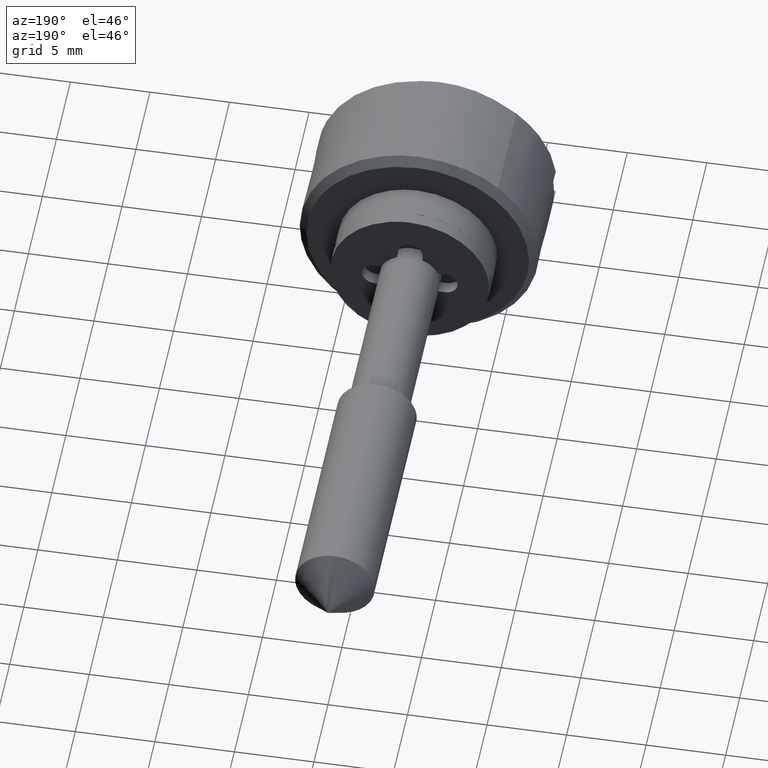
[diagram: clean part render]
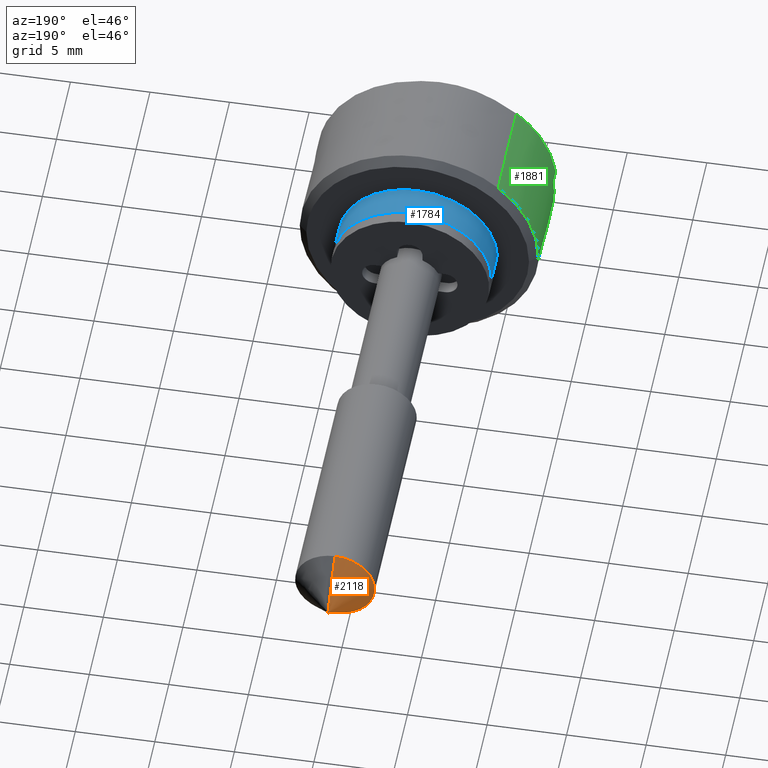
[diagram: same view with three faces highlighted in distinct colors, each labeled with its STEP entity id]
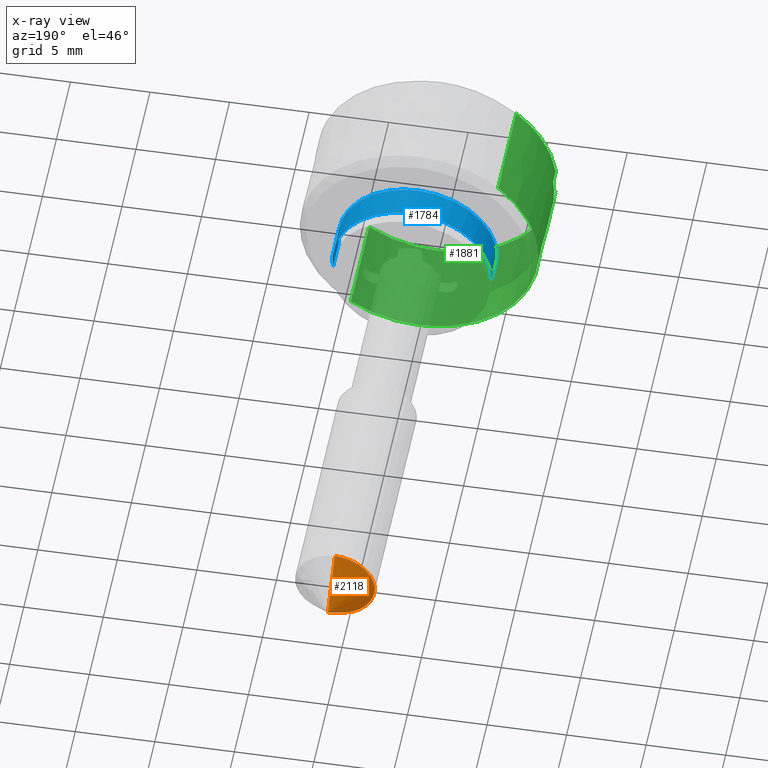
[diagram: x-ray of the same camera — body ghosted, the three highlighted faces saturated]
A machine part, auxiliary view with three faces highlighted in distinct colors.
The next image is the same camera in x-ray (body ghosted, the three faces saturated) — at least one of them is partly hidden behind the body in this view.
Their STEP definitions:

[orange] entity #2118 — the highlighted face is a freeform B-spline surface patch.
#1037=CARTESIAN_POINT('',(27.500000000000000,2.482523815905718,0.295085586670905));
#1038=VERTEX_POINT('',#1037);
#1039=CARTESIAN_POINT('',(27.499999999999979,0.0,-2.499999999999983));
#1040=VERTEX_POINT('',#1039);
#1041=CARTESIAN_POINT('',(27.499999999999993,2.482523815905718,0.295085586670905));
#1042=CARTESIAN_POINT('',(27.499999999999996,2.500000000000000,0.148060299159091));
#1043=CARTESIAN_POINT('',(27.500000000000000,2.500000000000000,0.0));
#1044=CARTESIAN_POINT('',(27.500000000000004,2.500000000000000,-2.500000000000000));
#1045=CARTESIAN_POINT('',(27.500000000000000,0.0,-2.500000000000000));
#1053=(BOUNDED_CURVE()B_SPLINE_CURVE(2,(#1041,#1042,#1043,#1044,#1045),.UNSPECIFIED.,.F.,.U.)B_SPLINE_CURVE_WITH_KNOTS((3,2,3),(0.459124947023389,0.500000000000000,1.0),.UNSPECIFIED.)CURVE()GEOMETRIC_REPRESENTATION_ITEM()RATIONAL_B_SPLINE_CURVE((0.956026754180144,0.976055948329020,1.0,0.707106781186548,1.0))REPRESENTATION_ITEM(''));
#1054=EDGE_CURVE('',#1038,#1040,#1053,.T.);
#1136=CARTESIAN_POINT('',(27.499999999999979,0.0,2.499999999999983));
#1137=VERTEX_POINT('',#1136);
#1138=CARTESIAN_POINT('',(27.500000000000000,0.0,2.500000000000000));
#1139=CARTESIAN_POINT('',(27.499999999999993,2.220436314826163,2.500000000000001));
#1140=CARTESIAN_POINT('',(27.500000000000000,2.482523815905718,0.295085586670905));
#1148=(BOUNDED_CURVE()B_SPLINE_CURVE(2,(#1138,#1139,#1140),.UNSPECIFIED.,.F.,.U.)B_SPLINE_CURVE_WITH_KNOTS((3,3),(0.0,0.459124947023389),.UNSPECIFIED.)CURVE()GEOMETRIC_REPRESENTATION_ITEM()RATIONAL_B_SPLINE_CURVE((1.0,0.731050832857527,0.956026754180144))REPRESENTATION_ITEM(''));
#1149=EDGE_CURVE('',#1137,#1038,#1148,.T.);
#1989=CARTESIAN_POINT('',(30.0,0.0,0.0));
#1990=VERTEX_POINT('',#1989);
#1991=CARTESIAN_POINT('',(30.0,0.0,0.0));
#1992=CARTESIAN_POINT('',(27.499999999999979,0.0,2.499999999999983));
#1993=QUASI_UNIFORM_CURVE('',1,(#1991,#1992),.UNSPECIFIED.,.F.,.U.);
#1994=EDGE_CURVE('',#1990,#1137,#1993,.T.);
#1998=CARTESIAN_POINT('',(30.0,0.0,0.0));
#1999=CARTESIAN_POINT('',(27.499999999999979,0.0,-2.499999999999983));
#2000=QUASI_UNIFORM_CURVE('',1,(#1998,#1999),.UNSPECIFIED.,.F.,.U.);
#2001=EDGE_CURVE('',#1990,#1040,#2000,.T.);
#2094=CARTESIAN_POINT('',(30.0,0.0,0.0));
#2095=CARTESIAN_POINT('',(27.435937499999980,-0.067119331520657,-2.563183859820054));
#2096=CARTESIAN_POINT('',(30.0,0.0,0.0));
#2097=CARTESIAN_POINT('',(27.435937499999980,2.633912877398660,-2.633912877398667));
#2098=CARTESIAN_POINT('',(30.0,0.0,0.0));
#2099=CARTESIAN_POINT('',(27.435937499999980,2.563183859820054,0.067119331520650));
#2100=CARTESIAN_POINT('',(30.0,0.0,0.0));
#2101=CARTESIAN_POINT('',(27.435937499999980,2.492454842241449,2.768151540439967));
#2102=CARTESIAN_POINT('',(30.0,0.0,0.0));
#2103=CARTESIAN_POINT('',(27.435937499999980,-0.201174025139667,2.556158351025013));
#2111=(BOUNDED_SURFACE()B_SPLINE_SURFACE(1,2,((#2094,#2096,#2098,#2100,#2102),(#2095,#2097,#2099,#2101,#2103)),.UNSPECIFIED.,.F.,.F.,.U.)B_SPLINE_SURFACE_WITH_KNOTS((2,2),(3,2,3),(0.0,1.0),(0.0,1.0,2.0),.UNSPECIFIED.)GEOMETRIC_REPRESENTATION_ITEM()RATIONAL_B_SPLINE_SURFACE(((1.0,0.688354575693754,1.0,0.688354575693754,1.0),(1.0,0.688354575693754,1.0,0.688354575693754,1.0)))REPRESENTATION_ITEM('')SURFACE());
#2112=ORIENTED_EDGE('',*,*,#2001,.T.);
#2113=ORIENTED_EDGE('',*,*,#1054,.F.);
#2114=ORIENTED_EDGE('',*,*,#1149,.F.);
#2115=ORIENTED_EDGE('',*,*,#1994,.F.);
#2116=EDGE_LOOP('',(#2112,#2113,#2114,#2115));
#2117=FACE_OUTER_BOUND('',#2116,.T.);
#2118=ADVANCED_FACE('',(#2117),#2111,.T.);

[blue] entity #1784 — the highlighted face is a freeform B-spline surface patch.
#1619=CARTESIAN_POINT('',(-1.999999999999962,-4.961332158347872,-0.620631303163347));
#1620=VERTEX_POINT('',#1619);
#1634=CARTESIAN_POINT('',(-2.000000000000151,4.999809663066866,0.043627205654747));
#1635=VERTEX_POINT('',#1634);
#1651=CARTESIAN_POINT('',(-1.040834E-017,4.999809669759694,0.043626438526642));
#1652=VERTEX_POINT('',#1651);
#1653=CARTESIAN_POINT('',(-2.000000000000151,4.999809663066866,0.043627205654747));
#1654=CARTESIAN_POINT('',(-1.040834E-017,4.999809669759694,0.043626438526642));
#1655=QUASI_UNIFORM_CURVE('',1,(#1653,#1654),.UNSPECIFIED.,.F.,.U.);
#1656=EDGE_CURVE('',#1635,#1652,#1655,.T.);
#1675=CARTESIAN_POINT('',(1.015215E-016,-4.961331216861208,-0.620638829430668));
#1676=VERTEX_POINT('',#1675);
#1690=CARTESIAN_POINT('',(-1.999999999999962,-4.961332158347872,-0.620631303163347));
#1691=CARTESIAN_POINT('',(1.015215E-016,-4.961331216861208,-0.620638829430668));
#1692=QUASI_UNIFORM_CURVE('',1,(#1690,#1691),.UNSPECIFIED.,.F.,.U.);
#1693=EDGE_CURVE('',#1620,#1676,#1692,.T.);
#1698=CARTESIAN_POINT('',(-2.050000000000000,4.999809615320855,0.043632677491869));
#1699=CARTESIAN_POINT('',(-2.050000000000001,4.956176937828985,5.043442292812725));
#1700=CARTESIAN_POINT('',(-2.050000000000000,-0.043632677491869,4.999809615320855));
#1701=CARTESIAN_POINT('',(-2.050000000000001,-5.043442292812725,4.956176937828985));
#1702=CARTESIAN_POINT('',(-2.050000000000000,-4.999809615320855,-0.043632677491869));
#1703=CARTESIAN_POINT('',(-2.050000000000000,-4.997282156301378,-0.333250794790868));
#1704=CARTESIAN_POINT('',(-2.050000000000000,-4.961331069127693,-0.620640010399146));
#1705=CARTESIAN_POINT('',(0.051250000000000,4.999809615320855,0.043632677491869));
#1706=CARTESIAN_POINT('',(0.051250000000000,4.956176937828985,5.043442292812725));
#1707=CARTESIAN_POINT('',(0.051250000000000,-0.043632677491869,4.999809615320855));
#1708=CARTESIAN_POINT('',(0.051250000000000,-5.043442292812725,4.956176937828985));
#1709=CARTESIAN_POINT('',(0.051250000000000,-4.999809615320855,-0.043632677491869));
#1710=CARTESIAN_POINT('',(0.051250000000000,-4.997282156301378,-0.333250794790868));
#1711=CARTESIAN_POINT('',(0.051250000000000,-4.961331069127693,-0.620640010399146));
#1719=(BOUNDED_SURFACE()B_SPLINE_SURFACE(2,1,((#1698,#1705),(#1699,#1706),(#1700,#1707),(#1701,#1708),(#1702,#1709),(#1703,#1710),(#1704,#1711)),.UNSPECIFIED.,.F.,.F.,.U.)B_SPLINE_SURFACE_WITH_KNOTS((3,2,2,3),(2,2),(0.0,8.284271247461899,16.568542494923800,17.231284194720750),(0.0,2.101250000000000),.UNSPECIFIED.)GEOMETRIC_REPRESENTATION_ITEM()RATIONAL_B_SPLINE_SURFACE(((1.0,1.0),(0.707106781186548,0.707106781186548),(1.0,1.0),(0.707106781186548,0.707106781186548),(1.0,1.0),(0.976568542494924,0.976568542494924),(0.956886118190660,0.956886118190660)))REPRESENTATION_ITEM('')SURFACE());
#1720=CARTESIAN_POINT('',(-2.0,0.0,5.0));
#1721=VERTEX_POINT('',#1720);
#1722=CARTESIAN_POINT('',(-1.999999999999962,-4.961332158347873,-0.620631303163347));
#1723=CARTESIAN_POINT('',(-2.000000000000000,-5.0,-0.311520233086355));
#1724=CARTESIAN_POINT('',(-2.0,-5.0,0.0));
#1725=CARTESIAN_POINT('',(-2.000000000000000,-5.000000000000001,5.000000000000001));
#1726=CARTESIAN_POINT('',(-2.0,0.0,5.0));
#1734=(BOUNDED_CURVE()B_SPLINE_CURVE(2,(#1722,#1723,#1724,#1725,#1726),.UNSPECIFIED.,.F.,.U.)B_SPLINE_CURVE_WITH_KNOTS((3,2,3),(0.228526367006317,0.250000000000000,0.500000000000000),.UNSPECIFIED.)CURVE()GEOMETRIC_REPRESENTATION_ITEM()RATIONAL_B_SPLINE_CURVE((0.954006004652503,0.974842074051445,1.0,0.707106781186548,1.0))REPRESENTATION_ITEM(''));
#1735=EDGE_CURVE('',#1620,#1721,#1734,.T.);
#1736=ORIENTED_EDGE('',*,*,#1735,.F.);
#1737=ORIENTED_EDGE('',*,*,#1693,.T.);
#1738=CARTESIAN_POINT('',(0.0,0.0,5.0));
#1739=VERTEX_POINT('',#1738);
#1740=CARTESIAN_POINT('',(0.0,0.0,5.0));
#1741=CARTESIAN_POINT('',(0.0,-5.000000000000001,5.000000000000001));
#1742=CARTESIAN_POINT('',(0.0,-5.0,0.0));
#1743=CARTESIAN_POINT('',(0.0,-5.0,-0.311524040270914));
#1744=CARTESIAN_POINT('',(1.015215E-016,-4.961331216861208,-0.620638829430668));
#1752=(BOUNDED_CURVE()B_SPLINE_CURVE(2,(#1740,#1741,#1742,#1743,#1744),.UNSPECIFIED.,.F.,.U.)B_SPLINE_CURVE_WITH_KNOTS((3,2,3),(0.0,0.250000000000000,0.271473888827134),.UNSPECIFIED.)CURVE()GEOMETRIC_REPRESENTATION_ITEM()RATIONAL_B_SPLINE_CURVE((1.0,0.707106781186548,1.0,0.974841774323914,0.954005508177877))REPRESENTATION_ITEM(''));
#1753=EDGE_CURVE('',#1739,#1676,#1752,.T.);
#1754=ORIENTED_EDGE('',*,*,#1753,.F.);
#1755=CARTESIAN_POINT('',(-1.040834E-017,4.999809669759694,0.043626438526642));
#1756=CARTESIAN_POINT('',(0.0,4.956562238205842,5.000000000000001));
#1757=CARTESIAN_POINT('',(0.0,0.0,5.0));
#1765=(BOUNDED_CURVE()B_SPLINE_CURVE(2,(#1755,#1756,#1757),.UNSPECIFIED.,.F.,.U.)B_SPLINE_CURVE_WITH_KNOTS((3,3),(0.751539674536829,1.0),.UNSPECIFIED.)CURVE()GEOMETRIC_REPRESENTATION_ITEM()RATIONAL_B_SPLINE_CURVE((0.996414536775377,0.708910622110616,1.0))REPRESENTATION_ITEM(''));
#1766=EDGE_CURVE('',#1652,#1739,#1765,.T.);
#1767=ORIENTED_EDGE('',*,*,#1766,.F.);
#1768=ORIENTED_EDGE('',*,*,#1656,.F.);
#1769=CARTESIAN_POINT('',(-2.0,0.0,5.0));
#1770=CARTESIAN_POINT('',(-1.999999999999999,4.956561477684366,4.999999999999999));
#1771=CARTESIAN_POINT('',(-2.000000000000151,4.999809663066866,0.043627205654747));
#1779=(BOUNDED_CURVE()B_SPLINE_CURVE(2,(#1769,#1770,#1771),.UNSPECIFIED.,.F.,.U.)B_SPLINE_CURVE_WITH_KNOTS((3,3),(0.500000000000000,0.748460298437314),.UNSPECIFIED.)CURVE()GEOMETRIC_REPRESENTATION_ITEM()RATIONAL_B_SPLINE_CURVE((1.0,0.708910653773377,0.996414474229868))REPRESENTATION_ITEM(''));
#1780=EDGE_CURVE('',#1721,#1635,#1779,.T.);
#1781=ORIENTED_EDGE('',*,*,#1780,.F.);
#1782=EDGE_LOOP('',(#1736,#1737,#1754,#1767,#1768,#1781));
#1783=FACE_OUTER_BOUND('',#1782,.T.);
#1784=ADVANCED_FACE('',(#1783),#1719,.T.);

[green] entity #1881 — the highlighted face is a freeform B-spline surface patch.
#1457=CARTESIAN_POINT('',(-2.500000000000329,7.499714422981644,-0.065449016240611));
#1458=VERTEX_POINT('',#1457);
#1464=CARTESIAN_POINT('',(-2.499999999999945,4.969649450100505,5.617168712359836));
#1465=VERTEX_POINT('',#1464);
#1466=CARTESIAN_POINT('',(-2.499999999999946,4.969649450100505,5.617168712359836));
#1467=CARTESIAN_POINT('',(-2.499999999999945,7.500000000000000,3.378504384688980));
#1468=CARTESIAN_POINT('',(-2.499999999999945,7.500000000000000,0.0));
#1469=CARTESIAN_POINT('',(-2.499999999999945,7.500000000000000,-0.032725131158087));
#1470=CARTESIAN_POINT('',(-2.500000000000328,7.499714422981644,-0.065449016240611));
#1478=(BOUNDED_CURVE()B_SPLINE_CURVE(2,(#1466,#1467,#1468,#1469,#1470),.UNSPECIFIED.,.F.,.U.)B_SPLINE_CURVE_WITH_KNOTS((3,2,3),(0.615779863551538,0.750000000000000,0.751539894335120),.UNSPECIFIED.)CURVE()GEOMETRIC_REPRESENTATION_ITEM()RATIONAL_B_SPLINE_CURVE((0.854350162460765,0.842751328824116,1.0,0.998195901566217,0.996414028100099))REPRESENTATION_ITEM(''));
#1479=EDGE_CURVE('',#1465,#1458,#1478,.T.);
#1515=CARTESIAN_POINT('',(-2.499999999999945,-4.287826768769291,-6.153417067046060));
#1516=VERTEX_POINT('',#1515);
#1532=CARTESIAN_POINT('',(-2.499999999999945,0.0,-7.500000000000000));
#1533=VERTEX_POINT('',#1532);
#1534=CARTESIAN_POINT('',(-2.499999999999945,0.0,-7.500000000000000));
#1535=CARTESIAN_POINT('',(-2.499999999999945,-2.355359146201568,-7.500000000000000));
#1536=CARTESIAN_POINT('',(-2.499999999999945,-4.287826768769291,-6.153417067046059));
#1544=(BOUNDED_CURVE()B_SPLINE_CURVE(2,(#1534,#1535,#1536),.UNSPECIFIED.,.F.,.U.)B_SPLINE_CURVE_WITH_KNOTS((3,3),(0.0,0.098251814606992),.UNSPECIFIED.)CURVE()GEOMETRIC_REPRESENTATION_ITEM()RATIONAL_B_SPLINE_CURVE((1.0,0.884890839061983,0.860259149644353))REPRESENTATION_ITEM(''));
#1545=EDGE_CURVE('',#1533,#1516,#1544,.T.);
#1547=CARTESIAN_POINT('',(-2.500000000000329,7.499714422981644,-0.065449016240611));
#1548=CARTESIAN_POINT('',(-2.499999999999945,7.434834079456778,-7.500000000000000));
#1549=CARTESIAN_POINT('',(-2.499999999999945,0.0,-7.500000000000000));
#1557=(BOUNDED_CURVE()B_SPLINE_CURVE(2,(#1547,#1548,#1549),.UNSPECIFIED.,.F.,.U.)B_SPLINE_CURVE_WITH_KNOTS((3,3),(0.751539894335119,1.0),.UNSPECIFIED.)CURVE()GEOMETRIC_REPRESENTATION_ITEM()RATIONAL_B_SPLINE_CURVE((0.996414028100101,0.708910879620330,1.0))REPRESENTATION_ITEM(''));
#1558=EDGE_CURVE('',#1458,#1533,#1557,.T.);
#1785=CARTESIAN_POINT('',(-9.162397500000004,-4.287829581630136,-6.153415106987136));
#1786=CARTESIAN_POINT('',(-9.162397500000006,1.191735502885045,-9.971691763989039));
#1787=CARTESIAN_POINT('',(-9.162397500000004,5.617167905917516,-4.969650361618027));
#1788=CARTESIAN_POINT('',(-9.162397500000004,10.586818267535543,0.647517544299490));
#1789=CARTESIAN_POINT('',(-9.162397500000004,4.969650361618027,5.617167905917516));
#1790=CARTESIAN_POINT('',(-2.333440062499944,-4.287829581630136,-6.153415106987136));
#1791=CARTESIAN_POINT('',(-2.333440062499943,1.191735502885045,-9.971691763989039));
#1792=CARTESIAN_POINT('',(-2.333440062499943,5.617167905917516,-4.969650361618027));
#1793=CARTESIAN_POINT('',(-2.333440062499943,10.586818267535543,0.647517544299490));
#1794=CARTESIAN_POINT('',(-2.333440062499943,4.969650361618027,5.617167905917516));
#1802=(BOUNDED_SURFACE()B_SPLINE_SURFACE(2,1,((#1785,#1790),(#1786,#1791),(#1787,#1792),(#1788,#1793),(#1789,#1794)),.UNSPECIFIED.,.F.,.F.,.U.)B_SPLINE_SURFACE_WITH_KNOTS((3,2,3),(2,2),(0.0,11.432294321497420,23.858701192690258),(0.0,6.828957437500062),.UNSPECIFIED.)GEOMETRIC_REPRESENTATION_ITEM()RATIONAL_B_SPLINE_SURFACE(((0.956886118190660,0.956886118190660),(0.730538238691624,0.730538238691624),(1.0,1.0),(0.707106781186548,0.707106781186548),(1.0,1.0)))REPRESENTATION_ITEM('')SURFACE());
#1803=CARTESIAN_POINT('',(-8.999899999999975,-4.287828965341124,-6.153415536430242));
#1804=VERTEX_POINT('',#1803);
#1805=CARTESIAN_POINT('',(-8.999900000000000,7.445804187594510,-0.900000000000000));
#1806=VERTEX_POINT('',#1805);
#1807=CARTESIAN_POINT('',(-8.999899999999975,-4.287828965341124,-6.153415536430242));
#1808=CARTESIAN_POINT('',(-8.999899999999999,-2.355360204235436,-7.499999999999999));
#1809=CARTESIAN_POINT('',(-8.999900000000000,0.0,-7.500000000000000));
#1810=CARTESIAN_POINT('',(-8.999900000000002,6.648039453209386,-7.499999999999999));
#1811=CARTESIAN_POINT('',(-8.999900000000000,7.445804187594514,-0.900000000000002));
#1819=(BOUNDED_CURVE()B_SPLINE_CURVE(2,(#1807,#1808,#1809,#1810,#1811),.UNSPECIFIED.,.F.,.U.)B_SPLINE_CURVE_WITH_KNOTS((3,2,3),(0.288480238268541,0.500000000000000,1.0),.UNSPECIFIED.)CURVE()GEOMETRIC_REPRESENTATION_ITEM()RATIONAL_B_SPLINE_CURVE((0.877146961187237,0.893534268109553,1.0,0.748331477354788,1.0))REPRESENTATION_ITEM(''));
#1820=EDGE_CURVE('',#1804,#1806,#1819,.T.);
#1821=ORIENTED_EDGE('',*,*,#1820,.T.);
#1822=CARTESIAN_POINT('',(-8.099900000000000,7.445804187594550,-0.900000000000000));
#1823=VERTEX_POINT('',#1822);
#1824=CARTESIAN_POINT('',(-8.999900000000000,7.445804187594510,-0.900000000000000));
#1825=CARTESIAN_POINT('',(-8.099900000000000,7.445804187594550,-0.900000000000000));
#1826=QUASI_UNIFORM_CURVE('',1,(#1824,#1825),.UNSPECIFIED.,.F.,.U.);
#1827=EDGE_CURVE('',#1806,#1823,#1826,.T.);
#1828=ORIENTED_EDGE('',*,*,#1827,.T.);
#1829=CARTESIAN_POINT('',(-8.099900000000000,7.445804187594519,0.900000000000000));
#1830=VERTEX_POINT('',#1829);
#1831=CARTESIAN_POINT('',(-8.099900000000000,7.445804187594550,-0.900000000000000));
#1832=CARTESIAN_POINT('',(-8.099900000000000,7.554590287737940,-2.710505E-015));
#1833=CARTESIAN_POINT('',(-8.099900000000000,7.445804187594514,0.899999999999998));
#1841=(BOUNDED_CURVE()B_SPLINE_CURVE(2,(#1831,#1832,#1833),.UNSPECIFIED.,.F.,.U.)CURVE()GEOMETRIC_REPRESENTATION_ITEM()QUASI_UNIFORM_CURVE()RATIONAL_B_SPLINE_CURVE((1.0,0.992773891679269,1.0))REPRESENTATION_ITEM(''));
#1842=EDGE_CURVE('',#1823,#1830,#1841,.T.);
#1843=ORIENTED_EDGE('',*,*,#1842,.T.);
#1844=CARTESIAN_POINT('',(-8.999900000000000,7.445804187594519,0.900000000000000));
#1845=VERTEX_POINT('',#1844);
#1846=CARTESIAN_POINT('',(-8.099900000000000,7.445804187594519,0.900000000000000));
#1847=CARTESIAN_POINT('',(-8.999900000000000,7.445804187594519,0.900000000000000));
#1848=QUASI_UNIFORM_CURVE('',1,(#1846,#1847),.UNSPECIFIED.,.F.,.U.);
#1849=EDGE_CURVE('',#1830,#1845,#1848,.T.);
#1850=ORIENTED_EDGE('',*,*,#1849,.T.);
#1851=CARTESIAN_POINT('',(-8.999899999999993,4.969650336873769,5.617167927809388));
#1852=VERTEX_POINT('',#1851);
#1853=CARTESIAN_POINT('',(-8.999900000000000,7.445804187594514,0.899999999999999));
#1854=CARTESIAN_POINT('',(-8.999900000000000,7.103855275871186,3.728982932058829));
#1855=CARTESIAN_POINT('',(-8.999899999999993,4.969650336873769,5.617167927809388));
#1863=(BOUNDED_CURVE()B_SPLINE_CURVE(2,(#1853,#1854,#1855),.UNSPECIFIED.,.F.,.U.)B_SPLINE_CURVE_WITH_KNOTS((3,3),(0.0,0.250310220134581),.UNSPECIFIED.)CURVE()GEOMETRIC_REPRESENTATION_ITEM()RATIONAL_B_SPLINE_CURVE((1.0,0.874009593391465,0.874165932435041))REPRESENTATION_ITEM(''));
#1864=EDGE_CURVE('',#1845,#1852,#1863,.T.);
#1865=ORIENTED_EDGE('',*,*,#1864,.T.);
#1866=CARTESIAN_POINT('',(-8.999899999999993,4.969650336873769,5.617167927809388));
#1867=CARTESIAN_POINT('',(-2.499999999999945,4.969649450100505,5.617168712359836));
#1868=QUASI_UNIFORM_CURVE('',1,(#1866,#1867),.UNSPECIFIED.,.F.,.U.);
#1869=EDGE_CURVE('',#1852,#1465,#1868,.T.);
#1870=ORIENTED_EDGE('',*,*,#1869,.T.);
#1871=ORIENTED_EDGE('',*,*,#1479,.T.);
#1872=ORIENTED_EDGE('',*,*,#1558,.T.);
#1873=ORIENTED_EDGE('',*,*,#1545,.T.);
#1874=CARTESIAN_POINT('',(-8.999899999999975,-4.287828965341124,-6.153415536430242));
#1875=CARTESIAN_POINT('',(-2.499999999999945,-4.287826768769291,-6.153417067046060));
#1876=QUASI_UNIFORM_CURVE('',1,(#1874,#1875),.UNSPECIFIED.,.F.,.U.);
#1877=EDGE_CURVE('',#1804,#1516,#1876,.T.);
#1878=ORIENTED_EDGE('',*,*,#1877,.F.);
#1879=EDGE_LOOP('',(#1821,#1828,#1843,#1850,#1865,#1870,#1871,#1872,#1873,#1878));
#1880=FACE_OUTER_BOUND('',#1879,.T.);
#1881=ADVANCED_FACE('',(#1880),#1802,.T.);